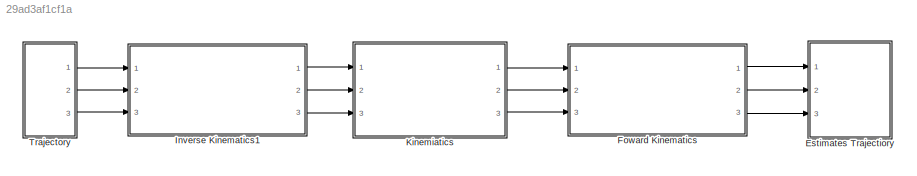
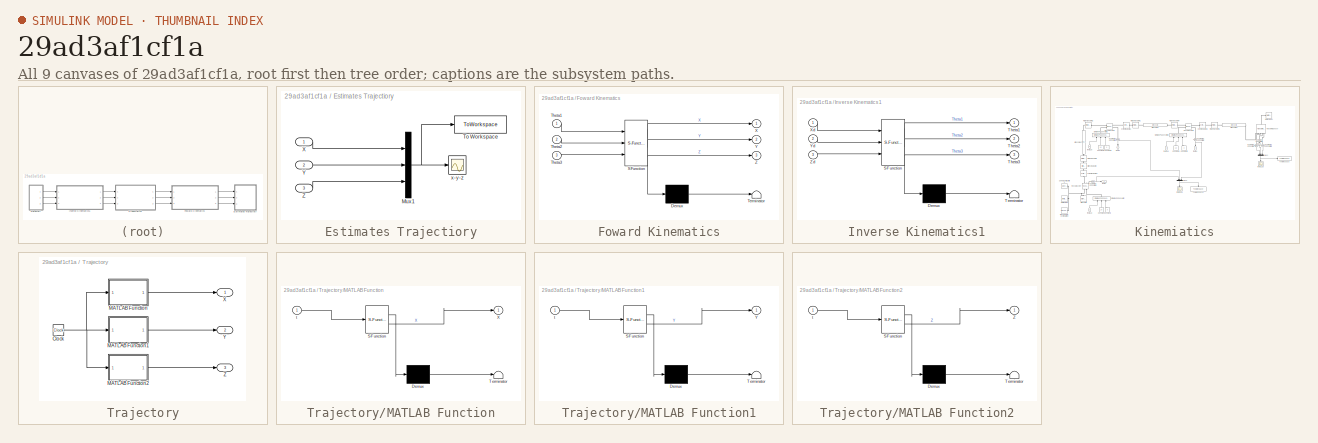
[diagram: thumbnail index - all 9 canvases of the model, root first then tree order]
MODEL slx_29ad3af1cf1a
KIND model
CONFIG AbsTol = 1e-3
CONFIG EnableMultiTasking = on
CONFIG FixedStep = auto
CONFIG MaxStep = auto
CONFIG MinStep = auto
CONFIG RelTol = 1e-3
CONFIG SampleTimeConstraint = Unconstrained
CONFIG SolverName = VariableStepAuto
CONFIG StartTime = 0.0
CONFIG StopTime = 5
BLOCK [SubSystem] Estimates Trajectiory
  Ports = [3]
  RequestExecContextInheritance = off
BLOCK [Mux] Estimates Trajectiory/Mux1
  DisplayOption = bar
  Inputs = 3
  Ports = [3, 1]
BLOCK [ToWorkspace] Estimates Trajectiory/To Workspace
  FixptAsFi = on
  MaxDataPoints = inf
  Ports = [1]
  SampleTime = -1
  SaveFormat = Timeseries
  VariableName = estimatorPosition
BLOCK [Inport] Estimates Trajectiory/X
BLOCK [Inport] Estimates Trajectiory/Y
  Port = 2
BLOCK [Inport] Estimates Trajectiory/Z
  Port = 3
BLOCK [Scope] Estimates Trajectiory/x-y-z
  Floating = off
  NumInputPorts = 1
  Ports = [1]
  ScopeSpecificationString = Simulink.scopes.TimeScopeBlockCfg('CurrentConfiguration', extmgr.ConfigurationSet(extmgr.Configuration('Core','General UI',true),extmgr.Configuration('Core','Source UI',true),extmgr.Configuration('Sources','WiredSimulink',true,'DataLoggingVariableName','ScopeData1'),extmgr.Configuration('Visuals','Time Domain',true,'SerializedDisplays',{struct('MinYLimReal','-15.00000','MaxYLimReal','35.00000','YL...<+1456ch>
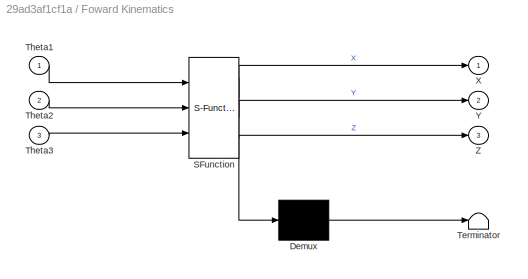
BLOCK [SubSystem] Foward Kinematics
  ErrorFcn = Stateflow.Translate.translate
  PermitHierarchicalResolution = ExplicitOnly
  Ports = [3, 3]
  RequestExecContextInheritance = off
  SFBlockType = MATLAB Function
  TreatAsAtomicUnit = on
BLOCK [Demux] Foward Kinematics/ Demux 
  Outputs = 1
  Ports = [1, 1]
BLOCK [S-Function] Foward Kinematics/ SFunction 
  EnableBusSupport = on
  FunctionName = sf_sfun
  PortCounts = [3 4]
  Ports = [3, 4]
  SFcnIsStateOwnerBlock = off
  SFunctionDeploymentMode = off
  Tag = Stateflow S-Function 2
BLOCK [Terminator] Foward Kinematics/ Terminator 
BLOCK [Inport] Foward Kinematics/Theta1
BLOCK [Inport] Foward Kinematics/Theta2
  Port = 2
BLOCK [Inport] Foward Kinematics/Theta3
  Port = 3
BLOCK [Outport] Foward Kinematics/X
  VectorParamsAs1DForOutWhenUnconnected = off
BLOCK [Outport] Foward Kinematics/Y
  Port = 2
  VectorParamsAs1DForOutWhenUnconnected = off
BLOCK [Outport] Foward Kinematics/Z
  Port = 3
  VectorParamsAs1DForOutWhenUnconnected = off
BLOCK [SubSystem] Inverse Kinematics1
  ErrorFcn = Stateflow.Translate.translate
  PermitHierarchicalResolution = ExplicitOnly
  Ports = [3, 3]
  RequestExecContextInheritance = off
  SFBlockType = MATLAB Function
  TreatAsAtomicUnit = on
BLOCK [Demux] Inverse Kinematics1/ Demux 
  Outputs = 1
  Ports = [1, 1]
BLOCK [S-Function] Inverse Kinematics1/ SFunction 
  EnableBusSupport = on
  FunctionName = sf_sfun
  PortCounts = [3 4]
  Ports = [3, 4]
  SFcnIsStateOwnerBlock = off
  SFunctionDeploymentMode = off
  Tag = Stateflow S-Function 1
BLOCK [Terminator] Inverse Kinematics1/ Terminator 
BLOCK [Outport] Inverse Kinematics1/Theta1
  VectorParamsAs1DForOutWhenUnconnected = off
BLOCK [Outport] Inverse Kinematics1/Theta2
  Port = 2
  VectorParamsAs1DForOutWhenUnconnected = off
BLOCK [Outport] Inverse Kinematics1/Theta3
  Port = 3
  VectorParamsAs1DForOutWhenUnconnected = off
BLOCK [Inport] Inverse Kinematics1/Xd
BLOCK [Inport] Inverse Kinematics1/Yd
  Port = 2
BLOCK [Inport] Inverse Kinematics1/Zd
  Port = 3
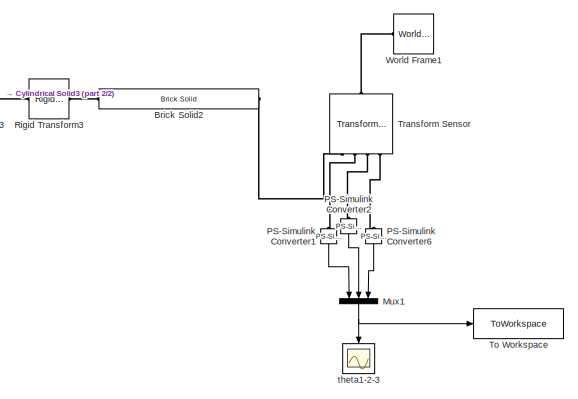
[diagram: Kinemiatics - part 1/2, top right region]
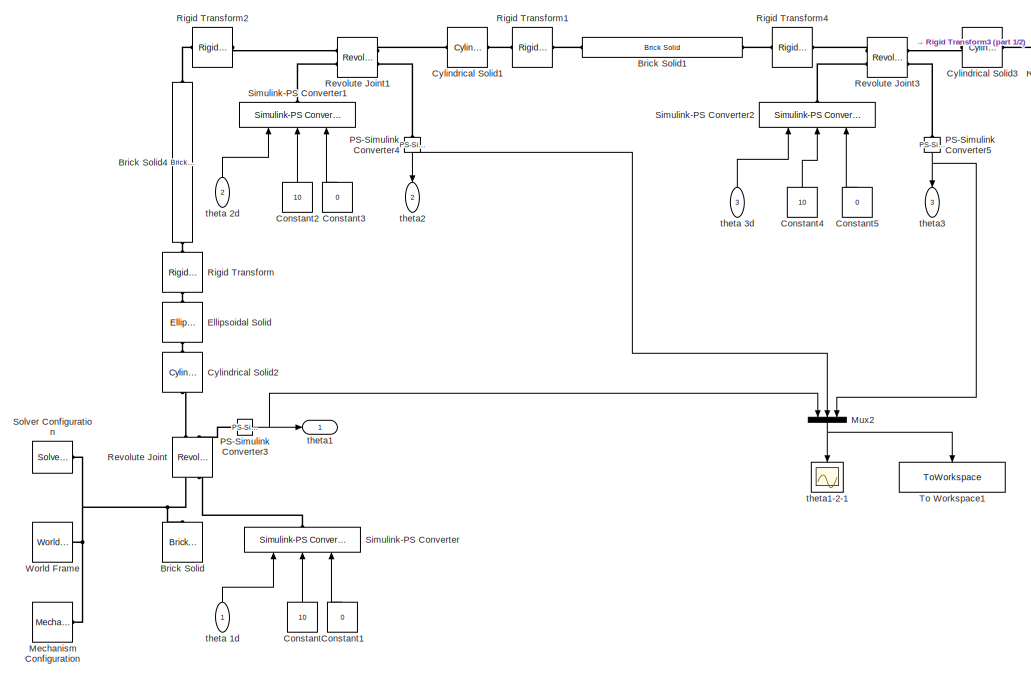
[diagram: Kinemiatics - part 2/2, left side, full height]
BLOCK [SubSystem] Kinemiatics
  Ports = [3, 3]
  RequestExecContextInheritance = off
BLOCK [Reference] Kinemiatics/Brick Solid  REF=sm_lib/Body Elements/Brick Solid
  NameLocation = left
  Ports = [0, 0, 0, 0, 0, 1]
  SourceBlock = sm_lib/Body Elements/Brick Solid
  SourceProductBaseCode = MS
  SourceType = Brick Solid
BLOCK [Reference] Kinemiatics/Brick Solid1  REF=sm_lib/Body Elements/Brick Solid
  NameLocation = top
  Ports = [0, 0, 0, 0, 0, 1, 1]
  SourceBlock = sm_lib/Body Elements/Brick Solid
  SourceProductBaseCode = MS
  SourceType = Brick Solid
BLOCK [Reference] Kinemiatics/Brick Solid2  REF=sm_lib/Body Elements/Brick Solid
  NameLocation = top
  Ports = [0, 0, 0, 0, 0, 1, 1]
  SourceBlock = sm_lib/Body Elements/Brick Solid
  SourceProductBaseCode = MS
  SourceType = Brick Solid
BLOCK [Reference] Kinemiatics/Brick Solid4  REF=sm_lib/Body Elements/Brick Solid
  NameLocation = right
  Ports = [0, 0, 0, 0, 0, 1, 1]
  SourceBlock = sm_lib/Body Elements/Brick Solid
  SourceProductBaseCode = MS
  SourceType = Brick Solid
BLOCK [Constant] Kinemiatics/Constant
  NameLocation = right
  Value = 10
BLOCK [Constant] Kinemiatics/Constant1
  NameLocation = right
  Value = 0
BLOCK [Constant] Kinemiatics/Constant2
  NameLocation = right
  Value = 10
BLOCK [Constant] Kinemiatics/Constant3
  NameLocation = right
  Value = 0
BLOCK [Constant] Kinemiatics/Constant4
  NameLocation = right
  Value = 10
BLOCK [Constant] Kinemiatics/Constant5
  NameLocation = right
  Value = 0
BLOCK [Reference] Kinemiatics/Cylindrical Solid1  REF=sm_lib/Body Elements/Cylindrical Solid
  Ports = [0, 0, 0, 0, 0, 1, 1]
  SourceBlock = sm_lib/Body Elements/Cylindrical Solid
  SourceProductBaseCode = MS
  SourceType = Cylindrical Solid
BLOCK [Reference] Kinemiatics/Cylindrical Solid2  REF=sm_lib/Body Elements/Cylindrical Solid
  NameLocation = right
  Ports = [0, 0, 0, 0, 0, 1, 1]
  SourceBlock = sm_lib/Body Elements/Cylindrical Solid
  SourceProductBaseCode = MS
  SourceType = Cylindrical Solid
BLOCK [Reference] Kinemiatics/Cylindrical Solid3  REF=sm_lib/Body Elements/Cylindrical Solid
  NameLocation = top
  Ports = [0, 0, 0, 0, 0, 1, 1]
  SourceBlock = sm_lib/Body Elements/Cylindrical Solid
  SourceProductBaseCode = MS
  SourceType = Cylindrical Solid
BLOCK [Reference] Kinemiatics/Ellipsoidal Solid  REF=sm_lib/Body Elements/Ellipsoidal Solid
  NameLocation = right
  Ports = [0, 0, 0, 0, 0, 1, 1]
  SourceBlock = sm_lib/Body Elements/Ellipsoidal Solid
  SourceProductBaseCode = MS
  SourceType = Ellipsoidal Solid
BLOCK [Reference] Kinemiatics/Mechanism Configuration  REF=sm_lib/Utilities/Mechanism
Configuration
  Ports = [0, 0, 0, 0, 0, 0, 1]
  SourceBlock = sm_lib/Utilities/Mechanism\nConfiguration
  SourceProductBaseCode = MS
  SourceType = Mechanism\nConfiguration
BLOCK [Mux] Kinemiatics/Mux1
  DisplayOption = bar
  Inputs = 3
  NameLocation = left
  Ports = [3, 1]
BLOCK [Mux] Kinemiatics/Mux2
  DisplayOption = bar
  Inputs = 3
  NameLocation = left
  Ports = [3, 1]
BLOCK [Reference] Kinemiatics/PS-Simulink Converter1  REF=nesl_utility/PS-Simulink
Converter
  NameLocation = left
  Ports = [0, 1, 0, 0, 0, 1]
  SourceBlock = nesl_utility/PS-Simulink\nConverter
  SourceProductBaseCode = PW,SS
  SourceType = PS-Simulink\nConverter
BLOCK [Reference] Kinemiatics/PS-Simulink Converter2  REF=nesl_utility/PS-Simulink
Converter
  NameLocation = left
  Ports = [0, 1, 0, 0, 0, 1]
  SourceBlock = nesl_utility/PS-Simulink\nConverter
  SourceProductBaseCode = PW,SS
  SourceType = PS-Simulink\nConverter
BLOCK [Reference] Kinemiatics/PS-Simulink Converter3  REF=nesl_utility/PS-Simulink
Converter
  Ports = [0, 1, 0, 0, 0, 1]
  SourceBlock = nesl_utility/PS-Simulink\nConverter
  SourceProductBaseCode = PW,SS
  SourceType = PS-Simulink\nConverter
BLOCK [Reference] Kinemiatics/PS-Simulink Converter4  REF=nesl_utility/PS-Simulink
Converter
  NameLocation = left
  Ports = [0, 1, 0, 0, 0, 1]
  SourceBlock = nesl_utility/PS-Simulink\nConverter
  SourceProductBaseCode = PW,SS
  SourceType = PS-Simulink\nConverter
BLOCK [Reference] Kinemiatics/PS-Simulink Converter5  REF=nesl_utility/PS-Simulink
Converter
  NameLocation = left
  Ports = [0, 1, 0, 0, 0, 1]
  SourceBlock = nesl_utility/PS-Simulink\nConverter
  SourceProductBaseCode = PW,SS
  SourceType = PS-Simulink\nConverter
BLOCK [Reference] Kinemiatics/PS-Simulink Converter6  REF=nesl_utility/PS-Simulink
Converter
  NameLocation = left
  Ports = [0, 1, 0, 0, 0, 1]
  SourceBlock = nesl_utility/PS-Simulink\nConverter
  SourceProductBaseCode = PW,SS
  SourceType = PS-Simulink\nConverter
BLOCK [Reference] Kinemiatics/Revolute Joint  REF=sm_lib/Joints/Revolute Joint
  NameLocation = right
  Ports = [0, 0, 0, 0, 0, 2, 2]
  SourceBlock = sm_lib/Joints/Revolute Joint
  SourceProductBaseCode = MS
  SourceType = Revolute Joint
BLOCK [Reference] Kinemiatics/Revolute Joint1  REF=sm_lib/Joints/Revolute Joint
  Ports = [0, 0, 0, 0, 0, 2, 2]
  SourceBlock = sm_lib/Joints/Revolute Joint
  SourceProductBaseCode = MS
  SourceType = Revolute Joint
BLOCK [Reference] Kinemiatics/Revolute Joint3  REF=sm_lib/Joints/Revolute Joint
  Ports = [0, 0, 0, 0, 0, 2, 2]
  SourceBlock = sm_lib/Joints/Revolute Joint
  SourceProductBaseCode = MS
  SourceType = Revolute Joint
BLOCK [Reference] Kinemiatics/Rigid Transform  REF=sm_lib/Frames and
Transforms/Rigid
Transform
  NameLocation = right
  Ports = [0, 0, 0, 0, 0, 1, 1]
  SourceBlock = sm_lib/Frames and\nTransforms/Rigid\nTransform
  SourceProductBaseCode = MS
  SourceType = Rigid\nTransform
BLOCK [Reference] Kinemiatics/Rigid Transform1  REF=sm_lib/Frames and
Transforms/Rigid
Transform
  Ports = [0, 0, 0, 0, 0, 1, 1]
  SourceBlock = sm_lib/Frames and\nTransforms/Rigid\nTransform
  SourceProductBaseCode = MS
  SourceType = Rigid\nTransform
BLOCK [Reference] Kinemiatics/Rigid Transform2  REF=sm_lib/Frames and
Transforms/Rigid
Transform
  Ports = [0, 0, 0, 0, 0, 1, 1]
  SourceBlock = sm_lib/Frames and\nTransforms/Rigid\nTransform
  SourceProductBaseCode = MS
  SourceType = Rigid\nTransform
BLOCK [Reference] Kinemiatics/Rigid Transform3  REF=sm_lib/Frames and
Transforms/Rigid
Transform
  Ports = [0, 0, 0, 0, 0, 1, 1]
  SourceBlock = sm_lib/Frames and\nTransforms/Rigid\nTransform
  SourceProductBaseCode = MS
  SourceType = Rigid\nTransform
BLOCK [Reference] Kinemiatics/Rigid Transform4  REF=sm_lib/Frames and
Transforms/Rigid
Transform
  Ports = [0, 0, 0, 0, 0, 1, 1]
  SourceBlock = sm_lib/Frames and\nTransforms/Rigid\nTransform
  SourceProductBaseCode = MS
  SourceType = Rigid\nTransform
BLOCK [Reference] Kinemiatics/Simulink-PS Converter  REF=nesl_utility/Simulink-PS
Converter
  NameLocation = right
  Ports = [3, 0, 0, 0, 0, 0, 1]
  SourceBlock = nesl_utility/Simulink-PS\nConverter
  SourceProductBaseCode = PW,SS
  SourceType = Simulink-PS\nConverter
BLOCK [Reference] Kinemiatics/Simulink-PS Converter1  REF=nesl_utility/Simulink-PS
Converter
  NameLocation = right
  Ports = [3, 0, 0, 0, 0, 0, 1]
  SourceBlock = nesl_utility/Simulink-PS\nConverter
  SourceProductBaseCode = PW,SS
  SourceType = Simulink-PS\nConverter
BLOCK [Reference] Kinemiatics/Simulink-PS Converter2  REF=nesl_utility/Simulink-PS
Converter
  NameLocation = right
  Ports = [3, 0, 0, 0, 0, 0, 1]
  SourceBlock = nesl_utility/Simulink-PS\nConverter
  SourceProductBaseCode = PW,SS
  SourceType = Simulink-PS\nConverter
BLOCK [Reference] Kinemiatics/Solver Configuration  REF=nesl_utility/Solver
Configuration
  Ports = [0, 0, 0, 0, 0, 0, 1]
  SourceBlock = nesl_utility/Solver\nConfiguration
  SourceProductBaseCode = PW,SS
  SourceType = Solver\nConfiguration
BLOCK [ToWorkspace] Kinemiatics/To Workspace
  FixptAsFi = on
  MaxDataPoints = inf
  Ports = [1]
  SampleTime = -1
  SaveFormat = Timeseries
  VariableName = realPosition
BLOCK [ToWorkspace] Kinemiatics/To Workspace1
  FixptAsFi = on
  MaxDataPoints = inf
  NameLocation = left
  Ports = [1]
  SampleTime = -1
  SaveFormat = Timeseries
  VariableName = anglesFromSensor
BLOCK [Reference] Kinemiatics/Transform Sensor  REF=sm_lib/Frames and
Transforms/Transform
Sensor
  NameLocation = left
  Ports = [0, 0, 0, 0, 0, 1, 4]
  SourceBlock = sm_lib/Frames and\nTransforms/Transform\nSensor
  SourceProductBaseCode = MS
  SourceType = Transform\nSensor
BLOCK [Reference] Kinemiatics/World Frame  REF=sm_lib/Frames and
Transforms/World Frame
  Ports = [0, 0, 0, 0, 0, 0, 1]
  SourceBlock = sm_lib/Frames and\nTransforms/World Frame
  SourceProductBaseCode = MS
  SourceType = World Frame
BLOCK [Reference] Kinemiatics/World Frame1  REF=sm_lib/Frames and
Transforms/World Frame
  NameLocation = top
  Ports = [0, 0, 0, 0, 0, 0, 1]
  SourceBlock = sm_lib/Frames and\nTransforms/World Frame
  SourceProductBaseCode = MS
  SourceType = World Frame
BLOCK [Inport] Kinemiatics/theta 1d
  NameLocation = right
BLOCK [Inport] Kinemiatics/theta 2d
  NameLocation = right
  Port = 2
BLOCK [Inport] Kinemiatics/theta 3d
  NameLocation = right
  Port = 3
BLOCK [Outport] Kinemiatics/theta1
  VectorParamsAs1DForOutWhenUnconnected = off
BLOCK [Scope] Kinemiatics/theta1-2-1
  Floating = off
  NameLocation = left
  NumInputPorts = 1
  Ports = [1]
  ScopeSpecificationString = Simulink.scopes.TimeScopeBlockCfg('CurrentConfiguration', extmgr.ConfigurationSet(extmgr.Configuration('Core','General UI',true),extmgr.Configuration('Core','Source UI',true),extmgr.Configuration('Sources','WiredSimulink',true,'DataLoggingVariableName','ScopeData2'),extmgr.Configuration('Visuals','Time Domain',true,'SerializedDisplays',{struct('MinYLimReal','-0.52067','MaxYLimReal','2.34979','YLab...<+1458ch>
BLOCK [Scope] Kinemiatics/theta1-2-3
  Floating = off
  NameLocation = left
  NumInputPorts = 1
  Ports = [1]
  ScopeSpecificationString = Simulink.scopes.TimeScopeBlockCfg('CurrentConfiguration', extmgr.ConfigurationSet(extmgr.Configuration('Core','General UI',true),extmgr.Configuration('Core','Source UI',true),extmgr.Configuration('Sources','WiredSimulink',true,'DataLoggingVariableName','ScopeData1'),extmgr.Configuration('Visuals','Time Domain',true,'SerializedDisplays',{struct('MinYLimReal','-15.00000','MaxYLimReal','35.00000','YL...<+1488ch>
BLOCK [Outport] Kinemiatics/theta2
  NameLocation = left
  Port = 2
  VectorParamsAs1DForOutWhenUnconnected = off
BLOCK [Outport] Kinemiatics/theta3
  NameLocation = left
  Port = 3
  VectorParamsAs1DForOutWhenUnconnected = off
BLOCK [SubSystem] Trajectory
  Ports = [0, 3]
  RequestExecContextInheritance = off
BLOCK [Clock] Trajectory/Clock
BLOCK [SubSystem] Trajectory/MATLAB Function
  ErrorFcn = Stateflow.Translate.translate
  PermitHierarchicalResolution = ExplicitOnly
  Ports = [1, 1]
  RequestExecContextInheritance = off
  SFBlockType = MATLAB Function
  TreatAsAtomicUnit = on
BLOCK [Demux] Trajectory/MATLAB Function/ Demux 
  Outputs = 1
  Ports = [1, 1]
BLOCK [S-Function] Trajectory/MATLAB Function/ SFunction 
  EnableBusSupport = on
  FunctionName = sf_sfun
  PortCounts = [1 2]
  Ports = [1, 2]
  SFcnIsStateOwnerBlock = off
  SFunctionDeploymentMode = off
  Tag = Stateflow S-Function 3
BLOCK [Terminator] Trajectory/MATLAB Function/ Terminator 
BLOCK [Outport] Trajectory/MATLAB Function/X
  VectorParamsAs1DForOutWhenUnconnected = off
BLOCK [Inport] Trajectory/MATLAB Function/t
BLOCK [SubSystem] Trajectory/MATLAB Function1
  ErrorFcn = Stateflow.Translate.translate
  PermitHierarchicalResolution = ExplicitOnly
  Ports = [1, 1]
  RequestExecContextInheritance = off
  SFBlockType = MATLAB Function
  TreatAsAtomicUnit = on
BLOCK [Demux] Trajectory/MATLAB Function1/ Demux 
  Outputs = 1
  Ports = [1, 1]
BLOCK [S-Function] Trajectory/MATLAB Function1/ SFunction 
  EnableBusSupport = on
  FunctionName = sf_sfun
  PortCounts = [1 2]
  Ports = [1, 2]
  SFcnIsStateOwnerBlock = off
  SFunctionDeploymentMode = off
  Tag = Stateflow S-Function 4
BLOCK [Terminator] Trajectory/MATLAB Function1/ Terminator 
BLOCK [Outport] Trajectory/MATLAB Function1/Y
  VectorParamsAs1DForOutWhenUnconnected = off
BLOCK [Inport] Trajectory/MATLAB Function1/t
BLOCK [SubSystem] Trajectory/MATLAB Function2
  ErrorFcn = Stateflow.Translate.translate
  PermitHierarchicalResolution = ExplicitOnly
  Ports = [1, 1]
  RequestExecContextInheritance = off
  SFBlockType = MATLAB Function
  TreatAsAtomicUnit = on
BLOCK [Demux] Trajectory/MATLAB Function2/ Demux 
  Outputs = 1
  Ports = [1, 1]
BLOCK [S-Function] Trajectory/MATLAB Function2/ SFunction 
  EnableBusSupport = on
  FunctionName = sf_sfun
  PortCounts = [1 2]
  Ports = [1, 2]
  SFcnIsStateOwnerBlock = off
  SFunctionDeploymentMode = off
  Tag = Stateflow S-Function 5
BLOCK [Terminator] Trajectory/MATLAB Function2/ Terminator 
BLOCK [Outport] Trajectory/MATLAB Function2/Z
  VectorParamsAs1DForOutWhenUnconnected = off
BLOCK [Inport] Trajectory/MATLAB Function2/t
BLOCK [Outport] Trajectory/X
  VectorParamsAs1DForOutWhenUnconnected = off
BLOCK [Outport] Trajectory/Y
  Port = 2
  VectorParamsAs1DForOutWhenUnconnected = off
BLOCK [Outport] Trajectory/Z
  Port = 3
  VectorParamsAs1DForOutWhenUnconnected = off
NET Estimates Trajectiory/Mux1:1 -> Estimates Trajectiory/To Workspace:1, Estimates Trajectiory/x-y-z:1
LINE Estimates Trajectiory/X:1 -> Estimates Trajectiory/Mux1:1
LINE Estimates Trajectiory/Y:1 -> Estimates Trajectiory/Mux1:2
LINE Estimates Trajectiory/Z:1 -> Estimates Trajectiory/Mux1:3
LINE Foward Kinematics:1 -> Estimates Trajectiory:1
LINE Foward Kinematics:2 -> Estimates Trajectiory:2
LINE Foward Kinematics:3 -> Estimates Trajectiory:3
LINE Inverse Kinematics1:1 -> Kinemiatics:1
LINE Inverse Kinematics1:2 -> Kinemiatics:2
LINE Inverse Kinematics1:3 -> Kinemiatics:3
LINE Kinemiatics/Constant1:1 -> Kinemiatics/Simulink-PS Converter:3
LINE Kinemiatics/Constant2:1 -> Kinemiatics/Simulink-PS Converter1:2
LINE Kinemiatics/Constant3:1 -> Kinemiatics/Simulink-PS Converter1:3
LINE Kinemiatics/Constant4:1 -> Kinemiatics/Simulink-PS Converter2:2
LINE Kinemiatics/Constant5:1 -> Kinemiatics/Simulink-PS Converter2:3
LINE Kinemiatics/Constant:1 -> Kinemiatics/Simulink-PS Converter:2
NET Kinemiatics/Mux1:1 -> Kinemiatics/To Workspace:1, Kinemiatics/theta1-2-3:1
NET Kinemiatics/Mux2:1 -> Kinemiatics/To Workspace1:1, Kinemiatics/theta1-2-1:1
LINE Kinemiatics/PS-Simulink Converter1:1 -> Kinemiatics/Mux1:1
LINE Kinemiatics/PS-Simulink Converter2:1 -> Kinemiatics/Mux1:2
NET Kinemiatics/PS-Simulink Converter3:1 -> Kinemiatics/Mux2:1, Kinemiatics/theta1:1
NET Kinemiatics/PS-Simulink Converter4:1 -> Kinemiatics/Mux2:2, Kinemiatics/theta2:1
NET Kinemiatics/PS-Simulink Converter5:1 -> Kinemiatics/Mux2:3, Kinemiatics/theta3:1
LINE Kinemiatics/PS-Simulink Converter6:1 -> Kinemiatics/Mux1:3
LINE Kinemiatics/theta 1d:1 -> Kinemiatics/Simulink-PS Converter:1
LINE Kinemiatics/theta 2d:1 -> Kinemiatics/Simulink-PS Converter1:1
LINE Kinemiatics/theta 3d:1 -> Kinemiatics/Simulink-PS Converter2:1
LINE Kinemiatics:1 -> Foward Kinematics:1
LINE Kinemiatics:2 -> Foward Kinematics:2
LINE Kinemiatics:3 -> Foward Kinematics:3
NET Trajectory/Clock:1 -> Trajectory/MATLAB Function1:1, Trajectory/MATLAB Function2:1, Trajectory/MATLAB Function:1
LINE Trajectory/MATLAB Function1:1 -> Trajectory/Y:1
LINE Trajectory/MATLAB Function2:1 -> Trajectory/Z:1
LINE Trajectory/MATLAB Function:1 -> Trajectory/X:1
LINE Trajectory:1 -> Inverse Kinematics1:1
LINE Trajectory:2 -> Inverse Kinematics1:2
LINE Trajectory:3 -> Inverse Kinematics1:3
PLINE Kinemiatics/Brick Solid1:LConn1 -- Kinemiatics/Rigid Transform1:RConn1
PLINE Kinemiatics/Brick Solid1:RConn1 -- Kinemiatics/Rigid Transform4:LConn1
PLINE Kinemiatics/Brick Solid2:LConn1 -- Kinemiatics/Rigid Transform3:RConn1
PLINE Kinemiatics/Brick Solid2:RConn1 -- Kinemiatics/Transform Sensor:RConn1
PLINE Kinemiatics/Brick Solid4:LConn1 -- Kinemiatics/Rigid Transform:RConn1
PLINE Kinemiatics/Brick Solid4:RConn1 -- Kinemiatics/Rigid Transform2:LConn1
PNET net1: Kinemiatics/Brick Solid:LConn1 -- Kinemiatics/Mechanism Configuration:RConn1 -- Kinemiatics/Revolute Joint:LConn1 -- Kinemiatics/Solver Configuration:RConn1 -- Kinemiatics/World Frame:RConn1
PLINE Kinemiatics/Cylindrical Solid1:LConn1 -- Kinemiatics/Revolute Joint1:RConn1
PLINE Kinemiatics/Cylindrical Solid1:RConn1 -- Kinemiatics/Rigid Transform1:LConn1
PLINE Kinemiatics/Cylindrical Solid2:LConn1 -- Kinemiatics/Revolute Joint:RConn1
PLINE Kinemiatics/Cylindrical Solid2:RConn1 -- Kinemiatics/Ellipsoidal Solid:LConn1
PLINE Kinemiatics/Cylindrical Solid3:LConn1 -- Kinemiatics/Rigid Transform3:LConn1
PLINE Kinemiatics/Cylindrical Solid3:RConn1 -- Kinemiatics/Revolute Joint3:RConn1
PLINE Kinemiatics/Ellipsoidal Solid:RConn1 -- Kinemiatics/Rigid Transform:LConn1
PLINE Kinemiatics/PS-Simulink Converter1:LConn1 -- Kinemiatics/Transform Sensor:RConn2
PLINE Kinemiatics/PS-Simulink Converter2:LConn1 -- Kinemiatics/Transform Sensor:RConn3
PLINE Kinemiatics/PS-Simulink Converter3:LConn1 -- Kinemiatics/Revolute Joint:RConn2
PLINE Kinemiatics/PS-Simulink Converter4:LConn1 -- Kinemiatics/Revolute Joint1:RConn2
PLINE Kinemiatics/PS-Simulink Converter5:LConn1 -- Kinemiatics/Revolute Joint3:RConn2
PLINE Kinemiatics/PS-Simulink Converter6:LConn1 -- Kinemiatics/Transform Sensor:RConn4
PLINE Kinemiatics/Revolute Joint1:LConn1 -- Kinemiatics/Rigid Transform2:RConn1
PLINE Kinemiatics/Revolute Joint1:LConn2 -- Kinemiatics/Simulink-PS Converter1:RConn1
PLINE Kinemiatics/Revolute Joint3:LConn1 -- Kinemiatics/Rigid Transform4:RConn1
PLINE Kinemiatics/Revolute Joint3:LConn2 -- Kinemiatics/Simulink-PS Converter2:RConn1
PLINE Kinemiatics/Revolute Joint:LConn2 -- Kinemiatics/Simulink-PS Converter:RConn1
PLINE Kinemiatics/Transform Sensor:LConn1 -- Kinemiatics/World Frame1:RConn1
note: NET lines group one-source signal fan-out (src -> all destinations, sorted); 1:1 wires keep LINE; PNET lines group multi-terminal physical nets as a canonical sorted terminal list (undirected conserving connections); 2-terminal nets keep the pairwise PLINE form
CHART Inverse Kinematics1 states=1 transitions=1
  STATE_LABEL 'eML_blk_kernel()'
  STATE_LABEL 'SCRIPT:\nfunction [Theta1, Theta2, Theta3] = InverseKinematics(Xd, Yd, Zd)\n\na1 = 6;\na2 = 15;\na3 = 14.5;\n\nd1 = 16.3;\nd2 = 0;\nd3 = 0;\n\nTheta1 = atan(Yd/Xd);\n\nr1 = sqrt((Xd - a1*cos(Theta1))^2 + (Yd - a1*sin(Theta1))^2 );\nr2 = Zd -d1;\nPhi2 = atan(r2/r1);\n\nr3 = sqrt(r1^2 + r2^2);\nPhi1 = acos((a2^2+r3^2-a3^2)/(2*a2*r3));\n\nTheta2 = pi/2 - (Phi1 + Phi2);\n\n\nPhi3 = acos((a2^2+a3^2-r3^2)/(2*a2*a3));\n\nTheta3 ...<+16ch>'
CHART Foward Kinematics states=1 transitions=1
  STATE_LABEL 'eML_blk_kernel()'
  STATE_LABEL 'SCRIPT:\nfunction [X, Y, Z] = FowardKinematics(Theta1, Theta2, Theta3)\n\na1 = 6;\na2 = 15;\na3 = 14.5;\n\nd1 = 16.3;\nd2 = 0;\nd3 = 0;\n\nT10 = [cos(Theta1),      0,   sin(Theta1), a1*cos(Theta1);\n       sin(Theta1),      0,  -cos(Theta1), a1*sin(Theta1);\n           0,            1,       0,            d1;\n           0,            0,       0,            1      ];\n\nT21 = [cos(Theta2+ pi/2), -sin(Theta2 + pi/...<+554ch>'
CHART Trajectory/MATLAB Function states=1 transitions=1
  STATE_LABEL 'eML_blk_kernel()'
  STATE_LABEL 'SCRIPT:\nfunction X = fcn(t)\n%#codegen\n\nX = -5 + (-10--5) * t /5;'
CHART Trajectory/MATLAB Function1 states=1 transitions=1
  STATE_LABEL 'eML_blk_kernel()'
  STATE_LABEL 'SCRIPT:\nfunction Y = fcn(t)\n%#codegen\n\nY = 5 + (-10-5) * t / 5;'
CHART Trajectory/MATLAB Function2 states=1 transitions=1
  STATE_LABEL 'eML_blk_kernel()'
  STATE_LABEL 'SCRIPT:\nfunction Z = fcn(t)\n%#codegen\n\nZ = 0 + (30- 0) * t / 5;'
CHART  states=0 transitions=0
CHART  states=0 transitions=0
CHART  states=0 transitions=0
CHART  states=0 transitions=0
CHART  states=0 transitions=0
